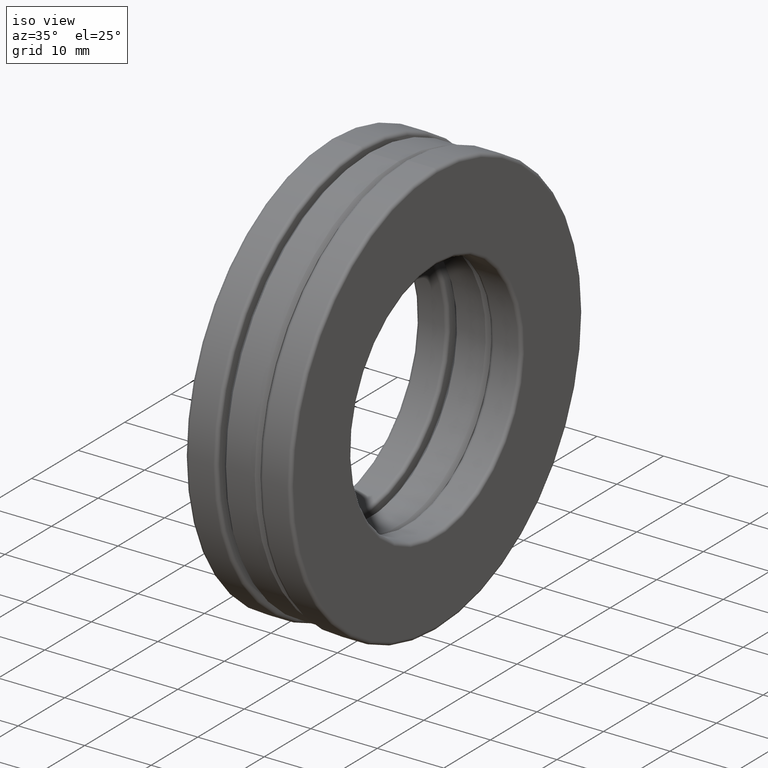
[diagram: clean part render]
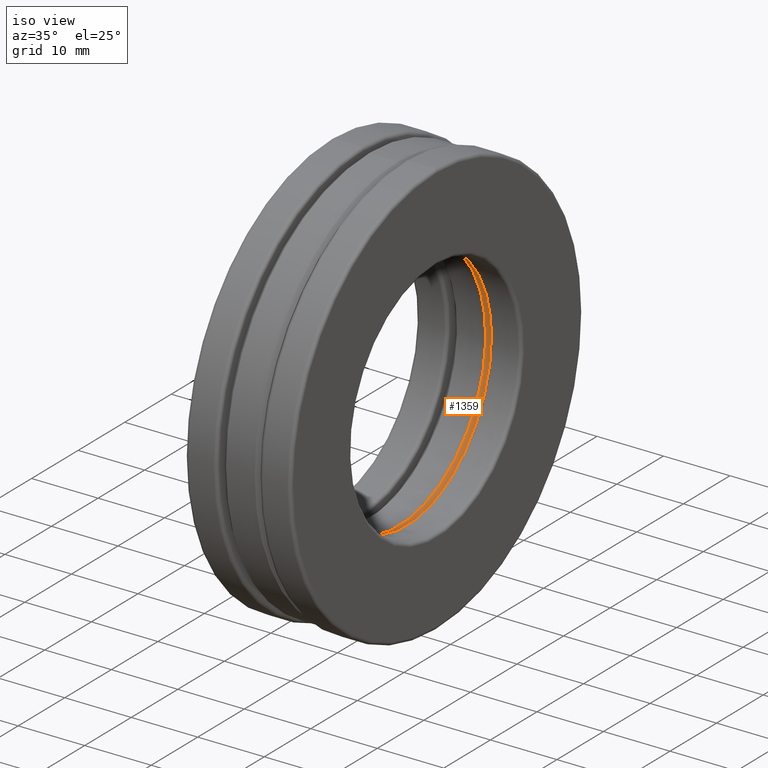
[diagram: same view with one face highlighted and labeled with its STEP entity id]
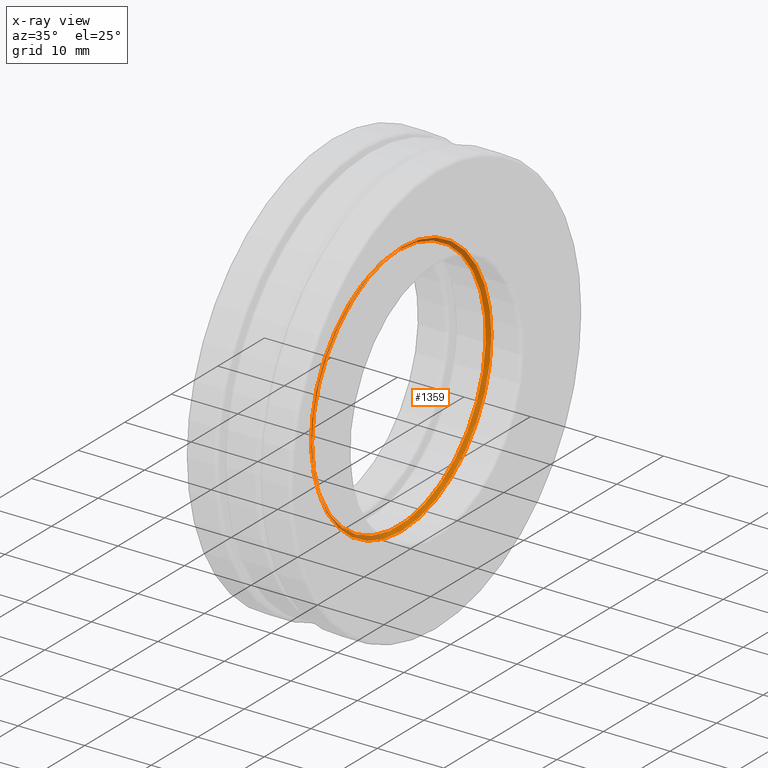
[diagram: x-ray of the same camera — body ghosted, the highlighted face saturated]
A machine part, iso view. The second image highlights one B-rep face of the part: STEP entity #1359.
The next image is the same camera in x-ray: the body ghosted, the highlighted face saturated — about 25% of this face is hidden behind the body in this view.
In plain terms, the highlighted conical surface has half-angle 45 deg.
Its self-contained STEP definition (entity closure, byte-faithful):
#50 = EDGE_LOOP ( 'NONE', ( #335 ) ) ;
#132 = EDGE_LOOP ( 'NONE', ( #866 ) ) ;
#178 = DIRECTION ( 'NONE',  ( 0.0000000000000000000, 0.0000000000000000000, 1.000000000000000000 ) ) ;
#185 = CARTESIAN_POINT ( 'NONE',  ( 0.1050000000000000400, 0.0000000000000000000, 0.0000000000000000000 ) ) ;
#275 = DIRECTION ( 'NONE',  ( 0.0000000000000000000, 0.0000000000000000000, 1.000000000000000000 ) ) ;
#335 = ORIENTED_EDGE ( 'NONE', *, *, #977, .F. ) ;
#434 = CARTESIAN_POINT ( 'NONE',  ( 0.08500000000000004800, 0.0000000000000000000, 0.7387500000000000200 ) ) ;
#486 = VERTEX_POINT ( 'NONE', #1229 ) ;
#569 = AXIS2_PLACEMENT_3D ( 'NONE', #185, #1106, #178 ) ;
#597 = AXIS2_PLACEMENT_3D ( 'NONE', #638, #622, #275 ) ;
#602 = AXIS2_PLACEMENT_3D ( 'NONE', #1349, #903, #1056 ) ;
#610 = FACE_OUTER_BOUND ( 'NONE', #50, .T. ) ;
#622 = DIRECTION ( 'NONE',  ( -1.000000000000000000, -0.0000000000000000000, -0.0000000000000000000 ) ) ;
#638 = CARTESIAN_POINT ( 'NONE',  ( 0.08500000000000004800, 0.0000000000000000000, 0.0000000000000000000 ) ) ;
#690 = CIRCLE ( 'NONE', #597, 0.7387500000000000200 ) ;
#783 = EDGE_CURVE ( 'NONE', #1470, #1470, #690, .T. ) ;
#866 = ORIENTED_EDGE ( 'NONE', *, *, #783, .T. ) ;
#903 = DIRECTION ( 'NONE',  ( 1.000000000000000000, 0.0000000000000000000, 0.0000000000000000000 ) ) ;
#934 = CIRCLE ( 'NONE', #569, 0.7587500000000000400 ) ;
#977 = EDGE_CURVE ( 'NONE', #486, #486, #934, .T. ) ;
#1056 = DIRECTION ( 'NONE',  ( 0.0000000000000000000, 0.0000000000000000000, -1.000000000000000000 ) ) ;
#1106 = DIRECTION ( 'NONE',  ( -1.000000000000000000, -0.0000000000000000000, -0.0000000000000000000 ) ) ;
#1229 = CARTESIAN_POINT ( 'NONE',  ( 0.1050000000000000400, 0.0000000000000000000, 0.7587500000000000400 ) ) ;
#1234 = FACE_BOUND ( 'NONE', #132, .T. ) ;
#1349 = CARTESIAN_POINT ( 'NONE',  ( 0.1050000000000000400, 0.0000000000000000000, 0.0000000000000000000 ) ) ;
#1359 = ADVANCED_FACE ( 'NONE', ( #1234, #610 ), #1471, .F. ) ;
#1470 = VERTEX_POINT ( 'NONE', #434 ) ;
#1471 = CONICAL_SURFACE ( 'NONE', #602, 0.7587500000000000400, 0.7853981633974500600 ) ;